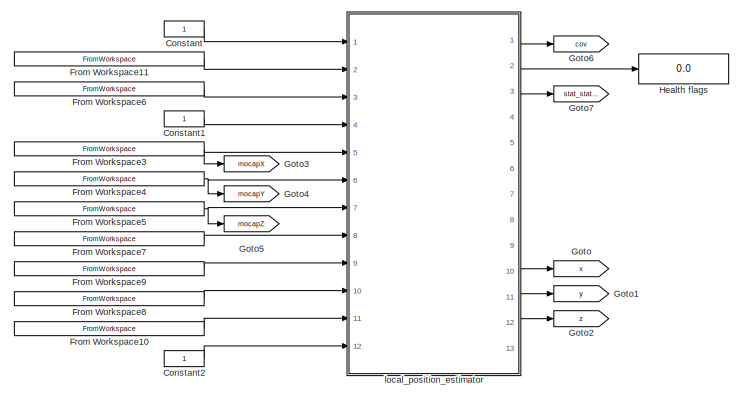
[diagram: root canvas - part 1/2, full width, top band]
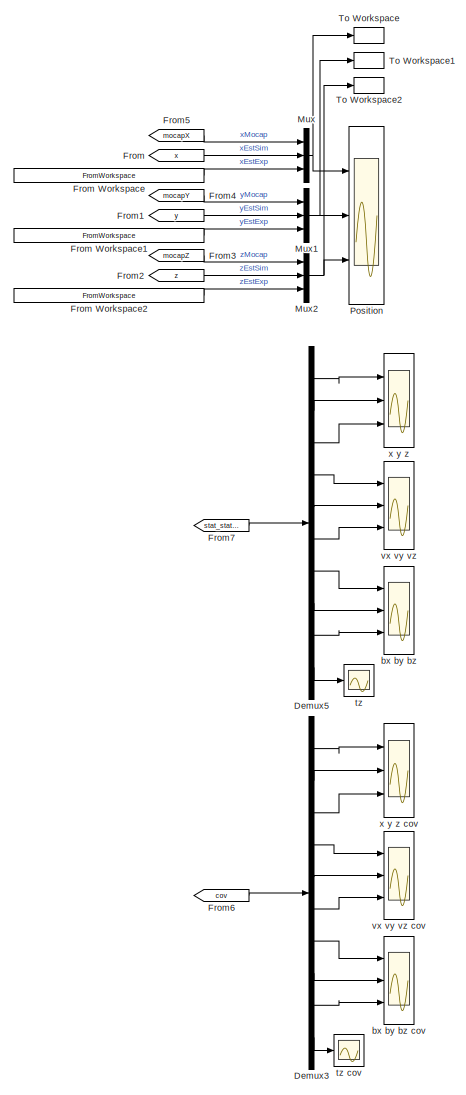
[diagram: root canvas - part 2/2, bottom right region]
MODEL slx_fa5f79658843
KIND model
CONFIG AbsTol = auto
CONFIG EnableMultiTasking = on
CONFIG FixedStep = auto
CONFIG InitFcn = % load tfwt_00_run_01.mat\n\nclear\nload 2017-07-18-13-36-00_fullrate_left_right_yaw\nif ~exist( 'logOriginal' )\n    logOriginal = dataInOriginal\nend\nflog = logOriginal;\ntSart = flog.vehicle_attitude.time(1);\ntimeStep = 0; %flog.vehicle_attitude.time(2) - flog.vehicle_attitude.time(1);\nflog.sensor_combined.time = flog.sensor_combined.time - flog.vehicle_attitude.time(1) - timeStep;\nflog.att_pos_mocap....<+413ch>
CONFIG MaxStep = auto
CONFIG MinStep = auto
CONFIG RelTol = 1e-3
CONFIG SampleTimeConstraint = Unconstrained
CONFIG SolverName = VariableStepAuto
CONFIG StartTime = 0.0
CONFIG StopTime = 60
BLOCK [Constant] Constant
BLOCK [Constant] Constant1
BLOCK [Constant] Constant2
BLOCK [Demux] Demux3
  Outputs = 10
  Ports = [1, 10]
BLOCK [Demux] Demux5
  Outputs = 10
  Ports = [1, 10]
BLOCK [From] From
  GotoTag = x
BLOCK [FromWorkspace] From Workspace
  Interpolate = off
  OutputAfterFinalValue = Holding final value
  VariableName = [flog.vehicle_local_position.time flog.vehicle_local_position.x]
BLOCK [FromWorkspace] From Workspace1
  Interpolate = off
  OutputAfterFinalValue = Holding final value
  VariableName = [flog.vehicle_local_position.time flog.vehicle_local_position.y]
BLOCK [FromWorkspace] From Workspace10
  Interpolate = off
  OutputAfterFinalValue = Holding final value
  VariableName = [flog.sensor_combined.time, flog.sensor_combined.timestamp-flog.att_pos_mocap.timestamp(1)]
BLOCK [FromWorkspace] From Workspace11
  Interpolate = off
  OutputAfterFinalValue = Holding final value
  VariableName = [flog.vehicle_attitude.time flog.vehicle_attitude.q_0_ flog.vehicle_attitude.q_1_ flog.vehicle_attitude.q_2_ flog.vehicle_attitude.q_3_ ]
BLOCK [FromWorkspace] From Workspace2
  Interpolate = off
  OutputAfterFinalValue = Holding final value
  VariableName = [flog.vehicle_local_position.time flog.vehicle_local_position.z]
BLOCK [FromWorkspace] From Workspace3
  Interpolate = off
  OutputAfterFinalValue = Holding final value
  VariableName = [flog.att_pos_mocap.time flog.att_pos_mocap.x]
BLOCK [FromWorkspace] From Workspace4
  Interpolate = off
  OutputAfterFinalValue = Holding final value
  VariableName = [flog.att_pos_mocap.time flog.att_pos_mocap.y]
BLOCK [FromWorkspace] From Workspace5
  Interpolate = off
  OutputAfterFinalValue = Holding final value
  VariableName = [flog.att_pos_mocap.time flog.att_pos_mocap.z]
BLOCK [FromWorkspace] From Workspace6
  Interpolate = off
  OutputAfterFinalValue = Holding final value
  VariableName = [flog.att_pos_mocap.time, flog.att_pos_mocap.timestamp-flog.att_pos_mocap.timestamp(1)]
BLOCK [FromWorkspace] From Workspace7
  Interpolate = off
  OutputAfterFinalValue = Holding final value
  VariableName = [flog.sensor_combined.time flog.sensor_combined.accelerometer_m_s2_0_ flog.sensor_combined.accelerometer_m_s2_1_ flog.sensor_combined.accelerometer_m_s2_2_ ]
BLOCK [FromWorkspace] From Workspace8
  Interpolate = off
  OutputAfterFinalValue = Holding final value
  VariableName = [flog.sensor_combined.time flog.sensor_combined.baro_timestamp_relative ]
BLOCK [FromWorkspace] From Workspace9
  Interpolate = off
  OutputAfterFinalValue = Holding final value
  VariableName = [flog.sensor_combined.time flog.sensor_combined.baro_alt_meter ]
BLOCK [From] From1
  GotoTag = y
BLOCK [From] From2
  GotoTag = z
BLOCK [From] From3
  GotoTag = mocapZ
BLOCK [From] From4
  GotoTag = mocapY
BLOCK [From] From5
  GotoTag = mocapX
BLOCK [From] From6
  GotoTag = cov
BLOCK [From] From7
  GotoTag = stat_states
BLOCK [Goto] Goto
  GotoTag = x
BLOCK [Goto] Goto1
  GotoTag = y
BLOCK [Goto] Goto2
  GotoTag = z
BLOCK [Goto] Goto3
  GotoTag = mocapX
BLOCK [Goto] Goto4
  GotoTag = mocapY
BLOCK [Goto] Goto5
  GotoTag = mocapZ
BLOCK [Goto] Goto6
  GotoTag = cov
BLOCK [Goto] Goto7
  GotoTag = stat_states
BLOCK [Display] Health flags
  Decimation = 1
  Ports = [1]
BLOCK [Mux] Mux
  DisplayOption = bar
  Inputs = 3
  Ports = [3, 1]
BLOCK [Mux] Mux1
  DisplayOption = bar
  Inputs = 3
  Ports = [3, 1]
BLOCK [Mux] Mux2
  DisplayOption = bar
  Inputs = 3
  Ports = [3, 1]
BLOCK [Scope] Position
  Floating = off
  NumInputPorts = 3
  Ports = [3]
  ScopeSpecificationString = Simulink.scopes.TimeScopeBlockCfg('CurrentConfiguration', extmgr.ConfigurationSet(extmgr.Configuration('Core','General UI',true),extmgr.Configuration('Core','Source UI',true),extmgr.Configuration('Sources','WiredSimulink',true,'DataLoggingVariableName','ScopeData1'),extmgr.Configuration('Visuals','Time Domain',true,'SerializedDisplays',{struct('MinYLimReal','-0.25415','MaxYLimReal','0.88829','YLab...<+2773ch>
BLOCK [ToWorkspace] To Workspace
  FixptAsFi = on
  MaxDataPoints = inf
  Ports = [1]
  SampleTime = -1
  SaveFormat = Structure With Time
  VariableName = x1
BLOCK [ToWorkspace] To Workspace1
  FixptAsFi = on
  MaxDataPoints = inf
  Ports = [1]
  SampleTime = -1
  SaveFormat = Structure With Time
  VariableName = y1
BLOCK [ToWorkspace] To Workspace2
  MaxDataPoints = inf
  Ports = [1]
  SampleTime = -1
  SaveFormat = Structure With Time
  VariableName = z1
BLOCK [Scope] bx by bz
  Floating = off
  NumInputPorts = 3
  Ports = [3]
  ScopeSpecificationString = Simulink.scopes.TimeScopeBlockCfg('CurrentConfiguration', extmgr.ConfigurationSet(extmgr.Configuration('Core','General UI',true),extmgr.Configuration('Core','Source UI',true),extmgr.Configuration('Sources','WiredSimulink',true,'DataLoggingVariableName','ScopeData6','DataLoggingSaveFormat','Array','DataLoggingDecimation','1','DataLoggingDecimateData',true),extmgr.Configuration('Visuals','Time Domai...<+1480ch>
BLOCK [Scope] bx by bz cov
  Floating = off
  NumInputPorts = 3
  Ports = [3]
  ScopeSpecificationString = Simulink.scopes.TimeScopeBlockCfg('CurrentConfiguration', extmgr.ConfigurationSet(extmgr.Configuration('Core','General UI',true),extmgr.Configuration('Core','Source UI',true),extmgr.Configuration('Sources','WiredSimulink',true,'DataLoggingSaveFormat','Array','DataLoggingDecimation','1','DataLoggingDecimateData',true),extmgr.Configuration('Visuals','Time Domain',true,'SerializedDisplays',{struct('M...<+1503ch>
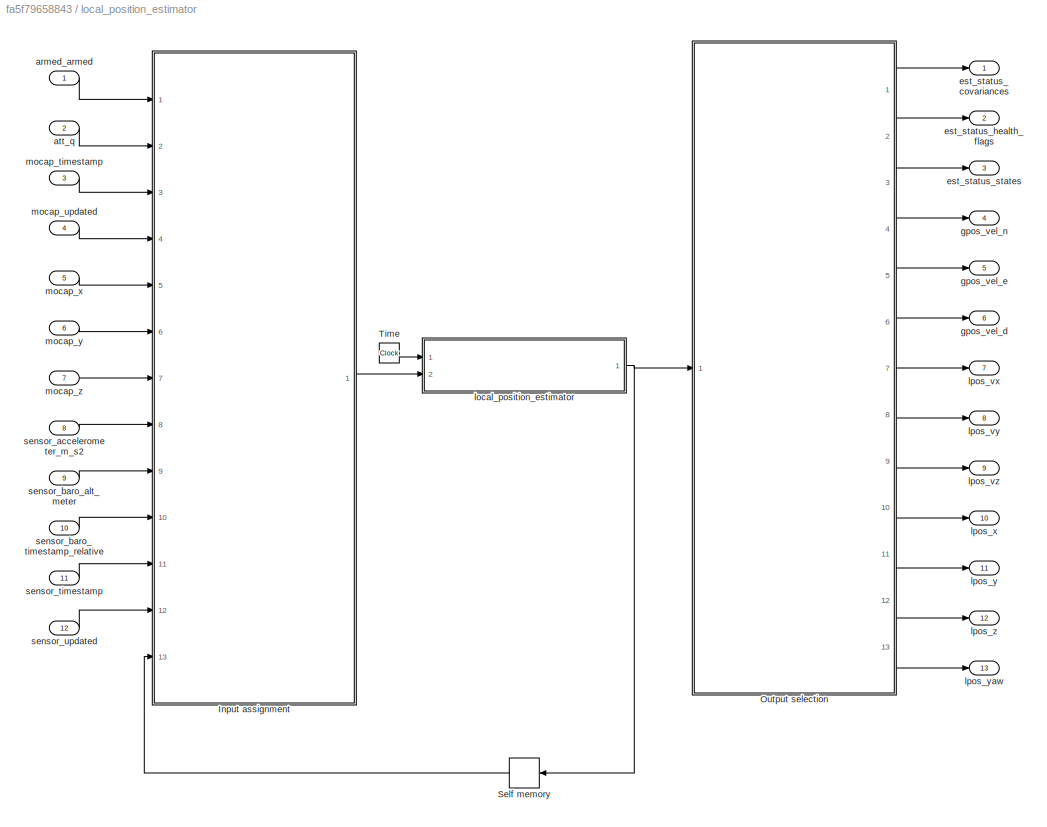
BLOCK [SubSystem] local_position_estimator
  AncestorBlock = Px4Library/local_position_estimator
  Ports = [12, 13]
  RequestExecContextInheritance = off
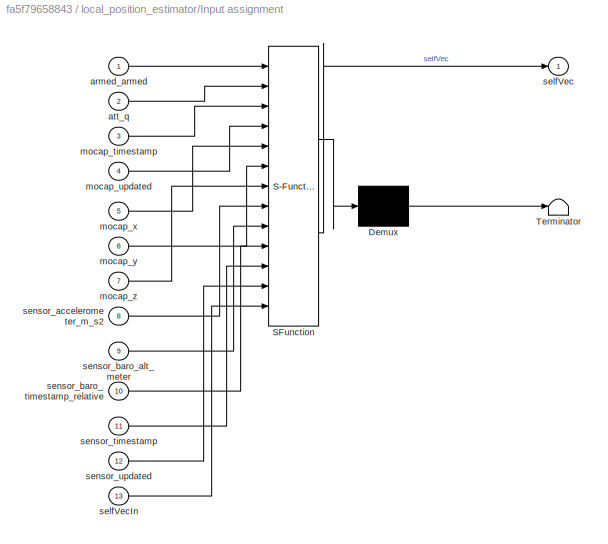
BLOCK [SubSystem] local_position_estimator/Input assignment
  ErrorFcn = Stateflow.Translate.translate
  PermitHierarchicalResolution = ExplicitOnly
  Ports = [13, 1]
  RequestExecContextInheritance = off
  SFBlockType = MATLAB Function
  TreatAsAtomicUnit = on
BLOCK [Demux] local_position_estimator/Input assignment/ Demux 
  Outputs = 1
  Ports = [1, 1]
BLOCK [S-Function] local_position_estimator/Input assignment/ SFunction 
  EnableBusSupport = off
  FunctionName = sf_sfun
  PortCounts = [13 2]
  Ports = [13, 2]
  SFcnIsStateOwnerBlock = off
  SFunctionDeploymentMode = off
  Tag = Stateflow S-Function 1
BLOCK [Terminator] local_position_estimator/Input assignment/ Terminator 
BLOCK [Inport] local_position_estimator/Input assignment/armed_armed
BLOCK [Inport] local_position_estimator/Input assignment/att_q
  Port = 2
BLOCK [Inport] local_position_estimator/Input assignment/mocap_timestamp
  Port = 3
BLOCK [Inport] local_position_estimator/Input assignment/mocap_updated
  Port = 4
BLOCK [Inport] local_position_estimator/Input assignment/mocap_x
  Port = 5
BLOCK [Inport] local_position_estimator/Input assignment/mocap_y
  Port = 6
BLOCK [Inport] local_position_estimator/Input assignment/mocap_z
  Port = 7
BLOCK [Outport] local_position_estimator/Input assignment/selfVec
  VectorParamsAs1DForOutWhenUnconnected = off
BLOCK [Inport] local_position_estimator/Input assignment/selfVecIn
  Port = 13
BLOCK [Inport] local_position_estimator/Input assignment/sensor_accelerometer_m_s2
  Port = 8
BLOCK [Inport] local_position_estimator/Input assignment/sensor_baro_alt_meter
  Port = 9
BLOCK [Inport] local_position_estimator/Input assignment/sensor_baro_timestamp_relative
  Port = 10
BLOCK [Inport] local_position_estimator/Input assignment/sensor_timestamp
  Port = 11
BLOCK [Inport] local_position_estimator/Input assignment/sensor_updated
  Port = 12
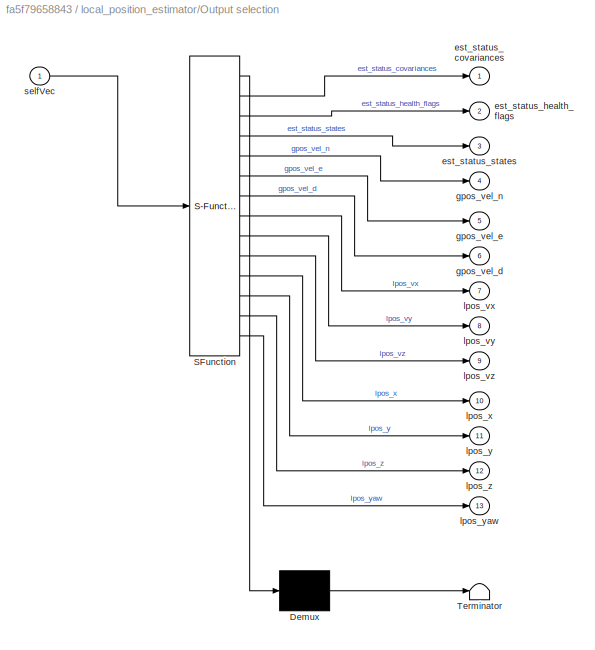
BLOCK [SubSystem] local_position_estimator/Output selection
  ErrorFcn = Stateflow.Translate.translate
  PermitHierarchicalResolution = ExplicitOnly
  Ports = [1, 13]
  RequestExecContextInheritance = off
  SFBlockType = MATLAB Function
  TreatAsAtomicUnit = on
BLOCK [Demux] local_position_estimator/Output selection/ Demux 
  Outputs = 1
  Ports = [1, 1]
BLOCK [S-Function] local_position_estimator/Output selection/ SFunction 
  EnableBusSupport = off
  FunctionName = sf_sfun
  PortCounts = [1 14]
  Ports = [1, 14]
  SFcnIsStateOwnerBlock = off
  SFunctionDeploymentMode = off
  Tag = Stateflow S-Function 6
BLOCK [Terminator] local_position_estimator/Output selection/ Terminator 
BLOCK [Outport] local_position_estimator/Output selection/est_status_covariances
  VectorParamsAs1DForOutWhenUnconnected = off
BLOCK [Outport] local_position_estimator/Output selection/est_status_health_flags
  Port = 2
  VectorParamsAs1DForOutWhenUnconnected = off
BLOCK [Outport] local_position_estimator/Output selection/est_status_states
  Port = 3
  VectorParamsAs1DForOutWhenUnconnected = off
BLOCK [Outport] local_position_estimator/Output selection/gpos_vel_d
  Port = 6
  VectorParamsAs1DForOutWhenUnconnected = off
BLOCK [Outport] local_position_estimator/Output selection/gpos_vel_e
  Port = 5
  VectorParamsAs1DForOutWhenUnconnected = off
BLOCK [Outport] local_position_estimator/Output selection/gpos_vel_n
  Port = 4
  VectorParamsAs1DForOutWhenUnconnected = off
BLOCK [Outport] local_position_estimator/Output selection/lpos_vx
  Port = 7
  VectorParamsAs1DForOutWhenUnconnected = off
BLOCK [Outport] local_position_estimator/Output selection/lpos_vy
  Port = 8
  VectorParamsAs1DForOutWhenUnconnected = off
BLOCK [Outport] local_position_estimator/Output selection/lpos_vz
  Port = 9
  VectorParamsAs1DForOutWhenUnconnected = off
BLOCK [Outport] local_position_estimator/Output selection/lpos_x
  Port = 10
  VectorParamsAs1DForOutWhenUnconnected = off
BLOCK [Outport] local_position_estimator/Output selection/lpos_y
  Port = 11
  VectorParamsAs1DForOutWhenUnconnected = off
BLOCK [Outport] local_position_estimator/Output selection/lpos_yaw
  Port = 13
  VectorParamsAs1DForOutWhenUnconnected = off
BLOCK [Outport] local_position_estimator/Output selection/lpos_z
  Port = 12
  VectorParamsAs1DForOutWhenUnconnected = off
BLOCK [Inport] local_position_estimator/Output selection/selfVec
BLOCK [Memory] local_position_estimator/Self memory
  InitialCondition = [0, 0, 0, 0, 0, 0, 0, 0, 0, 0, 0, 0, 0, 0, 0, 0, 0, 0, 0, 0, 0, 0, 0, 0, 0, 0, 0, 0, 0, 0, 0, 0, 0, 0, 0, 0, 0, 0, 0, 0, 0, 0, 0, 0, 0, 0, 0, 0, 0, 0, 0, 0, 0, 0, 0, 0, 0, 0, 0, 0, 0, 0, 0, 0, 0, 0, 0, 0, 0, 0, 0, 0, 0, 0, 0, 0, 0, 0, 0, 0, 0, 0, 0, 0, 0, 0, 0, 0, 0, 0, 0, 0, 0, 0, 0, 0, 0, 0, 0, 0, 0, 0, 0, 0, 0, 0, 0, 0, 0, 0, 0, 0, 0, 0, 0, 0, 0, 0, 0, 0, 0, 0, 0, 0, 0, 0, 0, 0, 0, 0, 0, 8.8205...<+2332ch>
BLOCK [Clock] local_position_estimator/Time
BLOCK [Inport] local_position_estimator/armed_armed
BLOCK [Inport] local_position_estimator/att_q
  Port = 2
BLOCK [Outport] local_position_estimator/est_status_covariances
  VectorParamsAs1DForOutWhenUnconnected = off
BLOCK [Outport] local_position_estimator/est_status_health_flags
  Port = 2
  VectorParamsAs1DForOutWhenUnconnected = off
BLOCK [Outport] local_position_estimator/est_status_states
  Port = 3
  VectorParamsAs1DForOutWhenUnconnected = off
BLOCK [Outport] local_position_estimator/gpos_vel_d
  Port = 6
  VectorParamsAs1DForOutWhenUnconnected = off
BLOCK [Outport] local_position_estimator/gpos_vel_e
  Port = 5
  VectorParamsAs1DForOutWhenUnconnected = off
BLOCK [Outport] local_position_estimator/gpos_vel_n
  Port = 4
  VectorParamsAs1DForOutWhenUnconnected = off
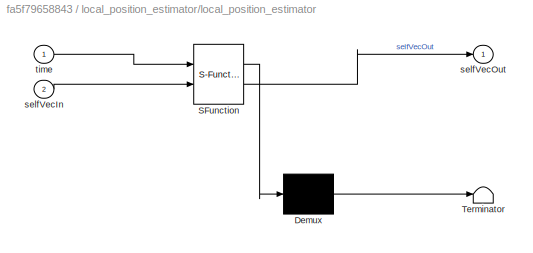
BLOCK [SubSystem] local_position_estimator/local_position_estimator
  ErrorFcn = Stateflow.Translate.translate
  PermitHierarchicalResolution = ExplicitOnly
  Ports = [2, 1]
  RequestExecContextInheritance = off
  SFBlockType = MATLAB Function
  SystemSampleTime = LPE_SAMPLING_PERIOD
  TreatAsAtomicUnit = on
BLOCK [Demux] local_position_estimator/local_position_estimator/ Demux 
  Outputs = 1
  Ports = [1, 1]
BLOCK [S-Function] local_position_estimator/local_position_estimator/ SFunction 
  EnableBusSupport = off
  FunctionName = sf_sfun
  Parameters = LPE_SAMPLING_PERIOD
  PortCounts = [2 2]
  Ports = [2, 2]
  SFcnIsStateOwnerBlock = off
  SFunctionDeploymentMode = off
  Tag = Stateflow S-Function 3
BLOCK [Terminator] local_position_estimator/local_position_estimator/ Terminator 
BLOCK [Inport] local_position_estimator/local_position_estimator/selfVecIn
  Port = 2
BLOCK [Outport] local_position_estimator/local_position_estimator/selfVecOut
  VectorParamsAs1DForOutWhenUnconnected = off
BLOCK [Inport] local_position_estimator/local_position_estimator/time
BLOCK [Outport] local_position_estimator/lpos_vx
  Port = 7
  VectorParamsAs1DForOutWhenUnconnected = off
BLOCK [Outport] local_position_estimator/lpos_vy
  Port = 8
  VectorParamsAs1DForOutWhenUnconnected = off
BLOCK [Outport] local_position_estimator/lpos_vz
  Port = 9
  VectorParamsAs1DForOutWhenUnconnected = off
BLOCK [Outport] local_position_estimator/lpos_x
  Port = 10
  VectorParamsAs1DForOutWhenUnconnected = off
BLOCK [Outport] local_position_estimator/lpos_y
  Port = 11
  VectorParamsAs1DForOutWhenUnconnected = off
BLOCK [Outport] local_position_estimator/lpos_yaw
  Port = 13
  VectorParamsAs1DForOutWhenUnconnected = off
BLOCK [Outport] local_position_estimator/lpos_z
  Port = 12
  VectorParamsAs1DForOutWhenUnconnected = off
BLOCK [Inport] local_position_estimator/mocap_timestamp
  Port = 3
BLOCK [Inport] local_position_estimator/mocap_updated
  Port = 4
BLOCK [Inport] local_position_estimator/mocap_x
  Port = 5
BLOCK [Inport] local_position_estimator/mocap_y
  Port = 6
BLOCK [Inport] local_position_estimator/mocap_z
  Port = 7
BLOCK [Inport] local_position_estimator/sensor_accelerometer_m_s2
  Port = 8
BLOCK [Inport] local_position_estimator/sensor_baro_alt_meter
  Port = 9
BLOCK [Inport] local_position_estimator/sensor_baro_timestamp_relative
  Port = 10
BLOCK [Inport] local_position_estimator/sensor_timestamp
  Port = 11
BLOCK [Inport] local_position_estimator/sensor_updated
  Port = 12
BLOCK [Scope] tz
  Floating = off
  NumInputPorts = 1
  Ports = [1]
  ScopeSpecificationString = Simulink.scopes.TimeScopeBlockCfg('CurrentConfiguration', extmgr.ConfigurationSet(extmgr.Configuration('Core','General UI',true),extmgr.Configuration('Core','Source UI',true),extmgr.Configuration('Sources','WiredSimulink',true,'DataLoggingVariableName','ScopeData7','DataLoggingSaveFormat','Array','DataLoggingDecimation','1','DataLoggingDecimateData',true),extmgr.Configuration('Visuals','Time Domai...<+1459ch>
BLOCK [Scope] tz cov
  Floating = off
  NumInputPorts = 1
  Ports = [1]
  ScopeSpecificationString = Simulink.scopes.TimeScopeBlockCfg('CurrentConfiguration', extmgr.ConfigurationSet(extmgr.Configuration('Core','General UI',true),extmgr.Configuration('Core','Source UI',true),extmgr.Configuration('Sources','WiredSimulink',true,'DataLoggingVariableName','ScopeData8','DataLoggingSaveFormat','Array','DataLoggingDecimation','1','DataLoggingDecimateData',true),extmgr.Configuration('Visuals','Time Domai...<+1459ch>
BLOCK [Scope] vx vy vz
  Floating = off
  NumInputPorts = 3
  Ports = [3]
  ScopeSpecificationString = Simulink.scopes.TimeScopeBlockCfg('CurrentConfiguration', extmgr.ConfigurationSet(extmgr.Configuration('Core','General UI',true),extmgr.Configuration('Core','Source UI',true),extmgr.Configuration('Sources','WiredSimulink',true,'DataLoggingVariableName','ScopeData5','DataLoggingSaveFormat','Array','DataLoggingDecimation','1','DataLoggingDecimateData',true),extmgr.Configuration('Visuals','Time Domai...<+1480ch>
BLOCK [Scope] vx vy vz cov
  Floating = off
  NumInputPorts = 3
  Ports = [3]
  ScopeSpecificationString = Simulink.scopes.TimeScopeBlockCfg('CurrentConfiguration', extmgr.ConfigurationSet(extmgr.Configuration('Core','General UI',true),extmgr.Configuration('Core','Source UI',true),extmgr.Configuration('Sources','WiredSimulink',true,'DataLoggingVariableName','ScopeData10'),extmgr.Configuration('Visuals','Time Domain',true,'SerializedDisplays',{struct('MinYLimReal','-0.02254','MaxYLimReal','0.20285','YLa...<+1463ch>
BLOCK [Scope] x y z
  Floating = off
  NumInputPorts = 3
  Ports = [3]
  ScopeSpecificationString = Simulink.scopes.TimeScopeBlockCfg('CurrentConfiguration', extmgr.ConfigurationSet(extmgr.Configuration('Core','General UI',true),extmgr.Configuration('Core','Source UI',true),extmgr.Configuration('Sources','WiredSimulink',true,'DataLoggingVariableName','ScopeData4','DataLoggingSaveFormat','Array','DataLoggingDecimation','1','DataLoggingDecimateData',true),extmgr.Configuration('Visuals','Time Domai...<+1505ch>
BLOCK [Scope] x y z cov
  Floating = off
  NumInputPorts = 3
  Ports = [3]
  ScopeSpecificationString = Simulink.scopes.TimeScopeBlockCfg('CurrentConfiguration', extmgr.ConfigurationSet(extmgr.Configuration('Core','General UI',true),extmgr.Configuration('Core','Source UI',true),extmgr.Configuration('Sources','WiredSimulink',true,'DataLoggingVariableName','ScopeData9'),extmgr.Configuration('Visuals','Time Domain',true,'SerializedDisplays',{struct('MinYLimReal','-1.00003','MaxYLimReal','9.00027','YLab...<+1460ch>
LINE Constant1:1 -> local_position_estimator:4
LINE Constant2:1 -> local_position_estimator:12
LINE Constant:1 -> local_position_estimator:1
LINE Demux3:1 -> x y z cov:1
LINE Demux3:10 -> tz cov:1
LINE Demux3:2 -> x y z cov:2
LINE Demux3:3 -> x y z cov:3
LINE Demux3:4 -> vx vy vz cov:1
LINE Demux3:5 -> vx vy vz cov:2
LINE Demux3:6 -> vx vy vz cov:3
LINE Demux3:7 -> bx by bz cov:1
LINE Demux3:8 -> bx by bz cov:2
LINE Demux3:9 -> bx by bz cov:3
LINE Demux5:1 -> x y z:1
LINE Demux5:10 -> tz:1
LINE Demux5:2 -> x y z:2
LINE Demux5:3 -> x y z:3
LINE Demux5:4 -> vx vy vz:1
LINE Demux5:5 -> vx vy vz:2
LINE Demux5:6 -> vx vy vz:3
LINE Demux5:7 -> bx by bz:1
LINE Demux5:8 -> bx by bz:2
LINE Demux5:9 -> bx by bz:3
LINE From Workspace10:1 -> local_position_estimator:11
LINE From Workspace11:1 -> local_position_estimator:2
LINE From Workspace1:1 -> Mux1:3
LINE From Workspace2:1 -> Mux2:3
NET From Workspace3:1 -> Goto3:1, local_position_estimator:5
NET From Workspace4:1 -> Goto4:1, local_position_estimator:6
NET From Workspace5:1 -> Goto5:1, local_position_estimator:7
LINE From Workspace6:1 -> local_position_estimator:3
LINE From Workspace7:1 -> local_position_estimator:8
LINE From Workspace8:1 -> local_position_estimator:10
LINE From Workspace9:1 -> local_position_estimator:9
LINE From Workspace:1 -> Mux:3
LINE From1:1 -> Mux1:2
LINE From2:1 -> Mux2:2
LINE From3:1 -> Mux2:1
LINE From4:1 -> Mux1:1
LINE From5:1 -> Mux:1
LINE From6:1 -> Demux3:1
LINE From7:1 -> Demux5:1
LINE From:1 -> Mux:2
NET Mux1:1 -> Position:2, To Workspace1:1
NET Mux2:1 -> Position:3, To Workspace2:1
NET Mux:1 -> Position:1, To Workspace:1
LINE local_position_estimator:1 -> Goto6:1
LINE local_position_estimator:10 -> Goto:1
LINE local_position_estimator:11 -> Goto1:1
LINE local_position_estimator:12 -> Goto2:1
LINE local_position_estimator:2 -> Health flags:1
LINE local_position_estimator:3 -> Goto7:1
note: NET lines group one-source signal fan-out (src -> all destinations, sorted); 1:1 wires keep LINE
CHART local_position_estimator/Input assignment states=1 transitions=1
  STATE_LABEL 'eML_blk_kernel()'
  STATE_LABEL 'SCRIPT:\nfunction selfVec = InputAssignment( ...\n\t                             armed_armed, ...\n\t                                   att_q, ...\n\t                         mocap_timestamp, ...\n\t                           mocap_updated, ...\n\t                                 mocap_x, ...\n\t                                 mocap_y, ...\n\t                                 mocap_z, ...\n\t               sensor_...<+1065ch>'
CHART local_position_estimator/local_position_estimator states=1 transitions=1
  STATE_LABEL 'eML_blk_kernel()'
  STATE_LABEL 'SCRIPT:\nfunction selfVecOut  = lpeMain( time, selfVecIn, LPE_SAMPLING_PERIOD )\n%#codegen\n\tself = DecodeSelf( selfVecIn );\n\tself = LocalPositionEstimator( self, time*1e6, LPE_SAMPLING_PERIOD );\n\tselfVecOut = EncodeSelf( self );\nend\n\nfunction self = DecodeSelf( selfVecIn )\n\t% Variable assignment\n\t                                  self.A        = zeros(10,10);\n\t                                  self....<+3608ch>'
CHART local_position_estimator/Output selection states=1 transitions=1
  STATE_LABEL 'eML_blk_kernel()'
  STATE_LABEL 'SCRIPT:\nfunction [ ...\n                   est_status_covariances, ...\n                  est_status_health_flags, ...\n                        est_status_states, ...\n                               gpos_vel_n, ...\n                               gpos_vel_e, ...\n                               gpos_vel_d, ...\n                                  lpos_vx, ...\n                                  lpos_vy, ...\n ...<+1109ch>'
CHART  states=0 transitions=0
CHART  states=0 transitions=0
CHART  states=0 transitions=0
